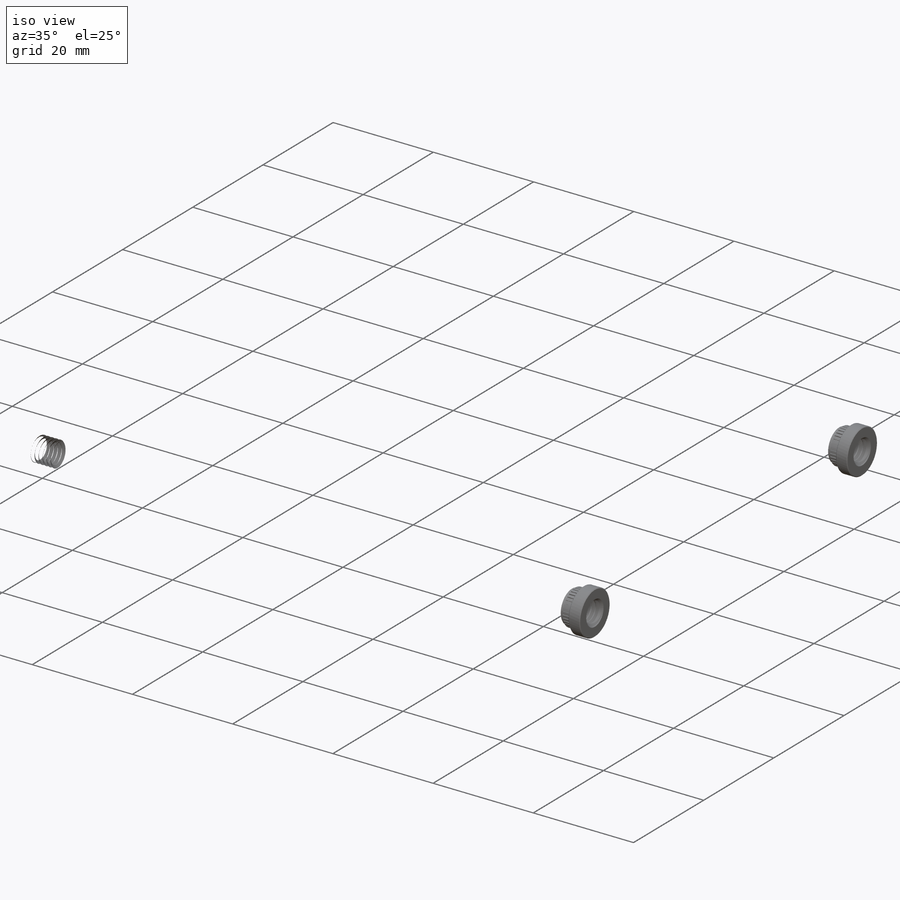
[diagram: iso view]
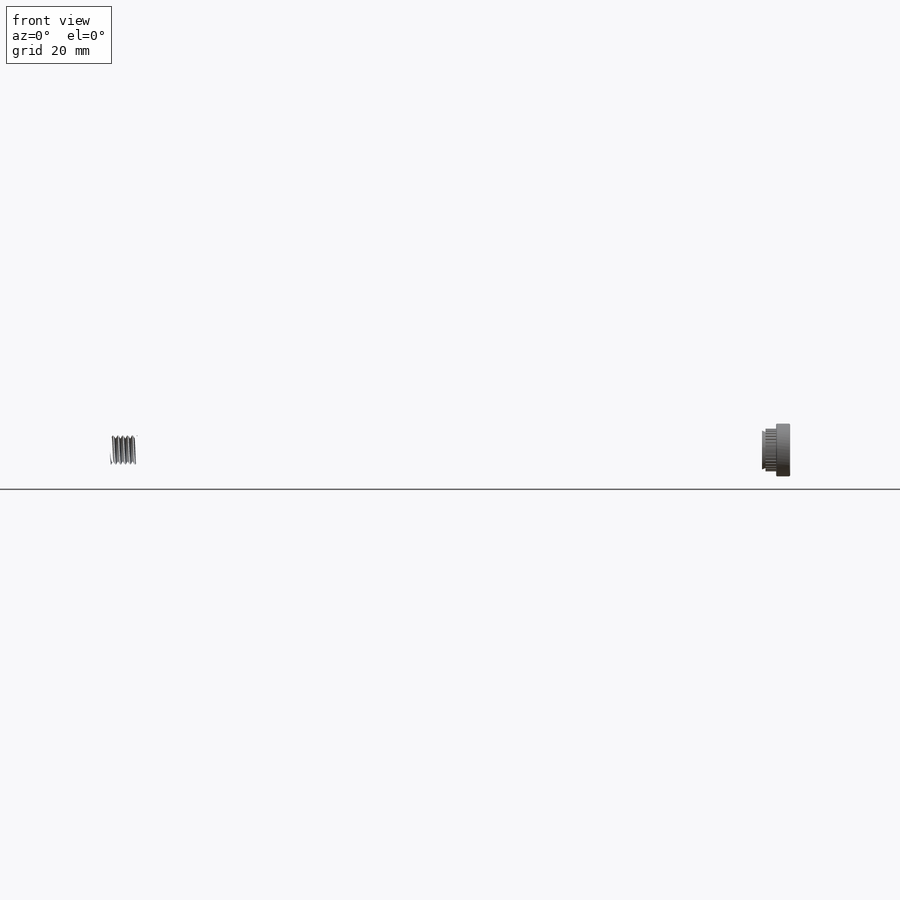
[diagram: front view]
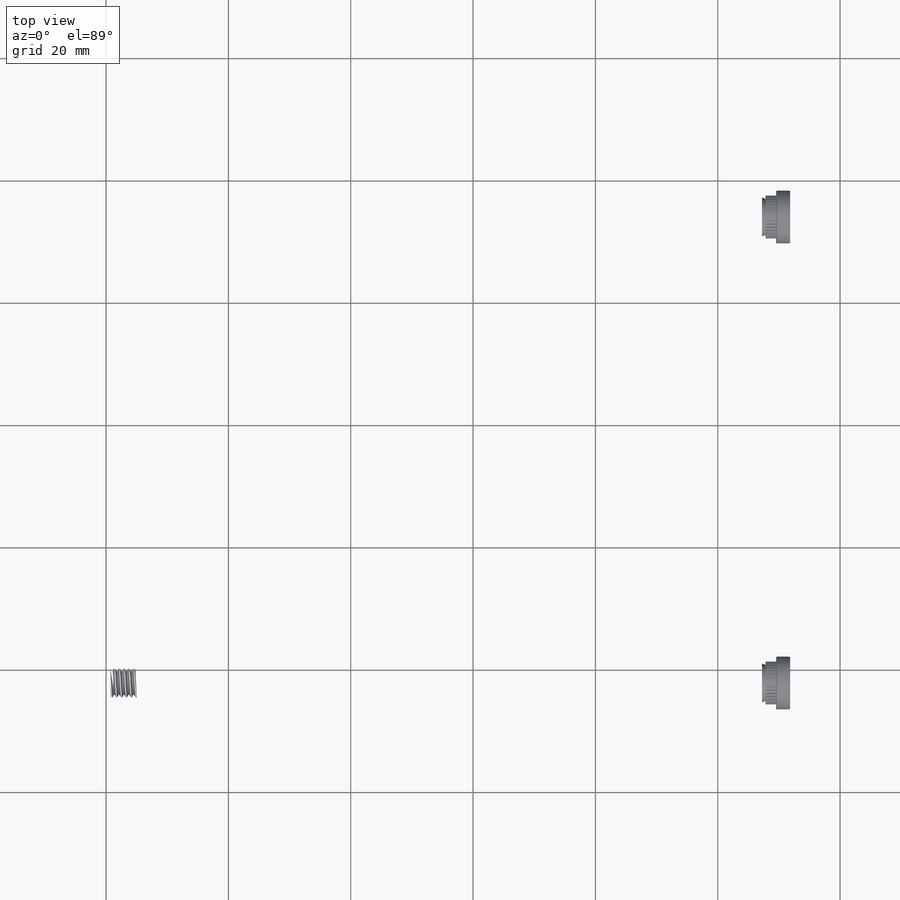
[diagram: top view]
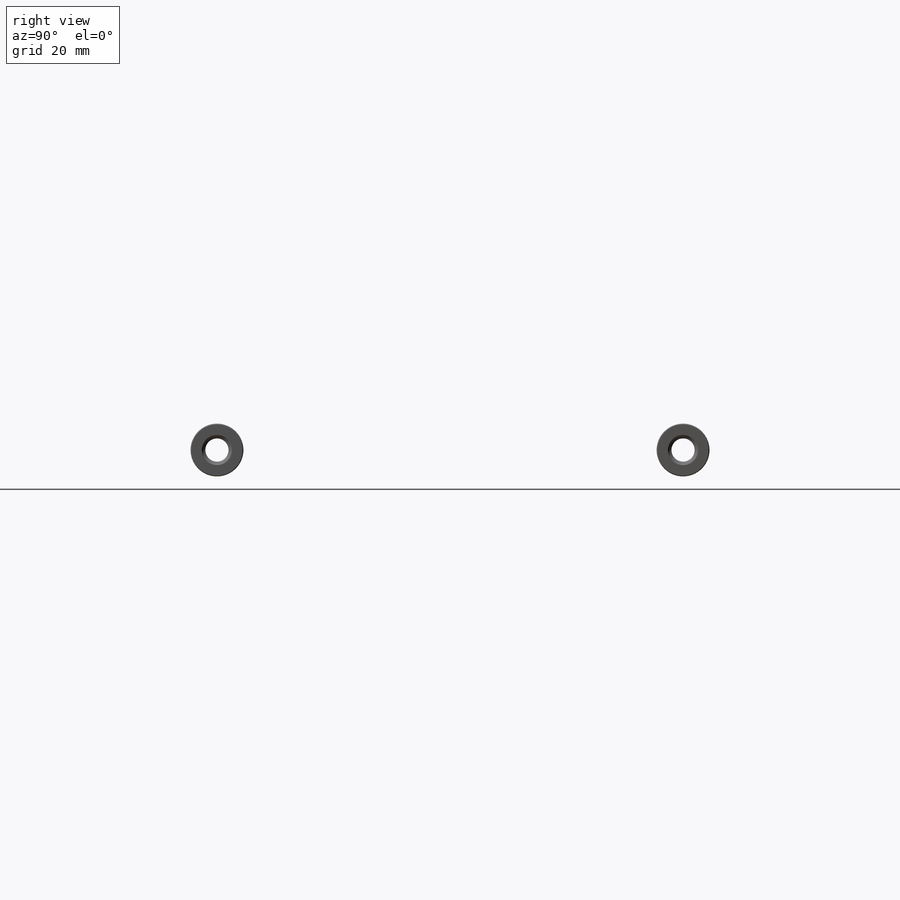
[diagram: right view]
SOLIDWORKS PART (.sldprt)
format: sldprt  version: not decoded by parser v0  size: 2,526,720 bytes
history: native  units: mm
features: sketch x7, extrude x4, cut_extrude x3, fillet x2, move_body x2, material x1, plane x1, mirror x1 + 2 further entries (+22 scaffold rows collapsed; 10 parser-record rows omitted)
feature tree (55):
  scaffold x22  (default folders/planes/origin — collapsed)
  material  "Material <not specified>"
  sketch  "Sketch1"
  extrude  "Boss-Extrude1"  [1 undecoded]
  sketch  "Sketch2"  dims[D1=2.54mm D2=110.49mm D3=19.685mm D4=110.49mm]
  extrude  "Boss-Extrude2"  Depth=23.876mm
  fillet  "Fillet2"  Radius=6.35mm
  sketch  "Sketch3"  dims[D1=6.35mm]
  cut_extrude  "Cut-Extrude1"  Depth=22.86mm
  "96439A560"
  parser-record x10  (decoder bookkeeping rows leaked as tree rows — omitted from the tree; the rows remain in map.json)
  move_body  "Body-Move/Copy10"
  "96439A5606"
  move_body  "Body-Move/Copy12"
  plane  "Plane1"
  mirror  "Mirror1"
  sketch  "Sketch4"
  extrude  "Boss-Extrude3"  [1 undecoded]
  sketch  "Sketch5"  dims[c1.D1=7.9375mm c1.D2=28.575mm c1.D3=85.725mm c1.D5=6.35mm c1.D4=4.7625mm c1.D6=3.175mm c2.D1=7.9375mm c2.D6=7.874mm c2.D10=~6.391721mm c3.D1=14.2875mm c3.D2=28.575mm c3.D3=42.8625mm c3.D4=14.2875mm c3.D5=14.2875mm c3.D7=6.0 c3.D8=12.0 c3.D9=18.0]
  cut_extrude  "Cut-Extrude3"  Depth=5.08mm
  sketch  "Sketch6"
  extrude  "Boss-Extrude4"  [1 undecoded]
  sketch  "Sketch7"  dims[D1=1.651mm D2=1.651mm]
  cut_extrude  "Cut-Extrude4"  Depth=6.5405mm
  fillet  "Fillet3"  Radius=1.524mm
decode coverage: 10 of 19 modeling features carry decoded parameters; 2 rows unclassified (native names shown)
note: ~ marks probable driven/reference dimensions
note: 3 parameter values undecoded
summary: no parameter record found for 3 features
note: suppression state not decoded; provenance and decode notes live in map.json
